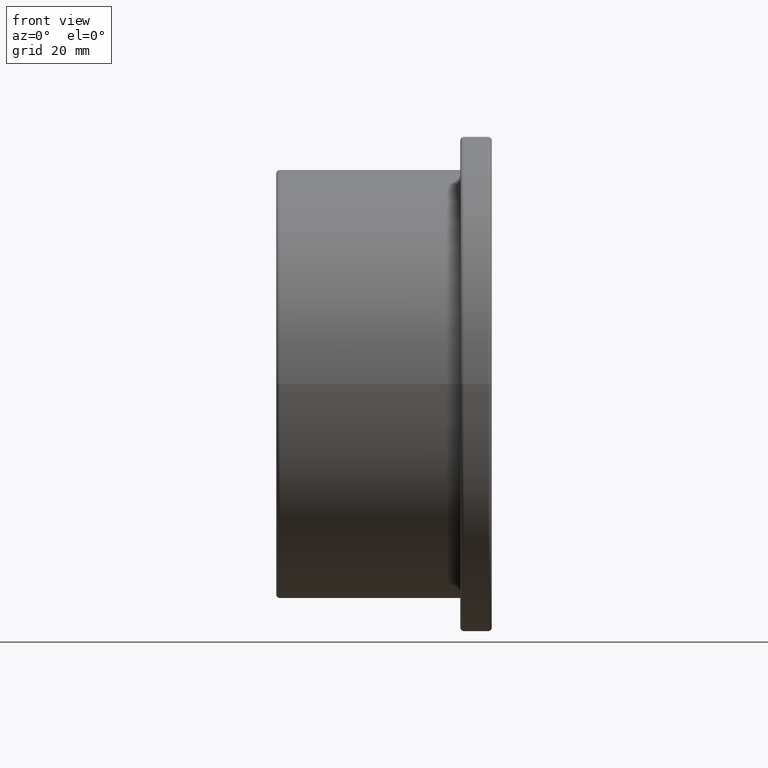
[diagram: clean part render]
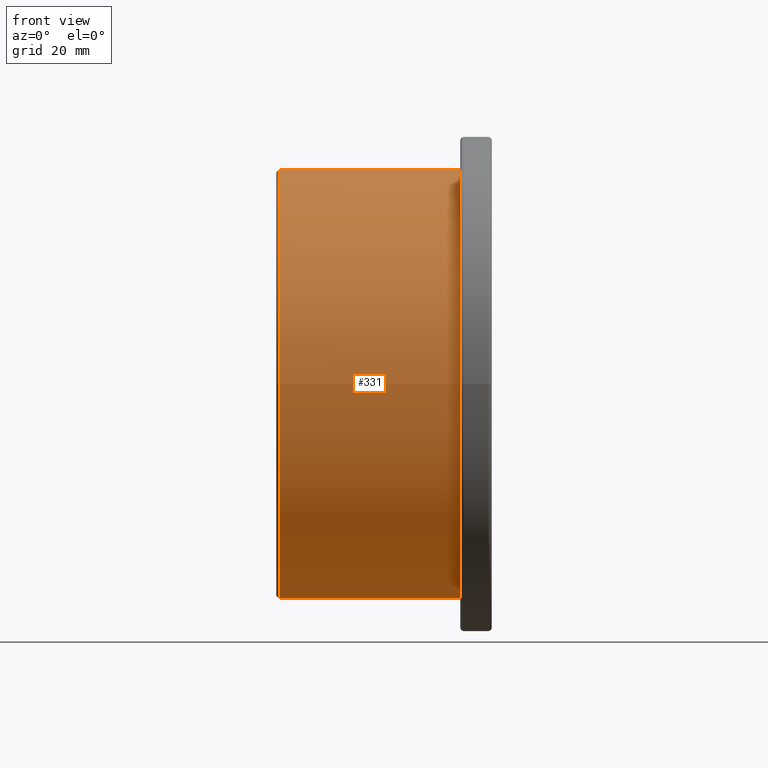
[diagram: same view with one face highlighted and labeled with its STEP entity id]
A machine part, front view. The second image highlights one B-rep face of the part: STEP entity #331.
In plain terms, the highlighted cylindrical surface (bore or boss wall) has radius 81.5 mm, axis along (-1, 0, 0).
Its self-contained STEP definition (entity closure, byte-faithful):
#23=CYLINDRICAL_SURFACE('',#379,81.5);
#64=FACE_BOUND('',#142,.T.);
#92=FACE_OUTER_BOUND('',#141,.T.);
#141=EDGE_LOOP('',(#291));
#142=EDGE_LOOP('',(#292));
#166=CIRCLE('',#376,81.5);
#167=CIRCLE('',#378,81.5);
#194=VERTEX_POINT('',#2209);
#195=VERTEX_POINT('',#2212);
#227=EDGE_CURVE('',#194,#194,#166,.T.);
#228=EDGE_CURVE('',#195,#195,#167,.T.);
#291=ORIENTED_EDGE('',*,*,#227,.T.);
#292=ORIENTED_EDGE('',*,*,#228,.F.);
#331=ADVANCED_FACE('',(#92,#64),#23,.T.);
#376=AXIS2_PLACEMENT_3D('',#2210,#465,#466);
#378=AXIS2_PLACEMENT_3D('',#2213,#469,#470);
#379=AXIS2_PLACEMENT_3D('',#2214,#471,#472);
#465=DIRECTION('center_axis',(-1.,0.,0.));
#466=DIRECTION('ref_axis',(0.,0.,1.));
#469=DIRECTION('center_axis',(-1.,0.,0.));
#470=DIRECTION('ref_axis',(0.,1.,6.12323399573677E-17));
#471=DIRECTION('center_axis',(-1.,0.,0.));
#472=DIRECTION('ref_axis',(0.,-1.,0.));
#2209=CARTESIAN_POINT('',(70.,-81.5,0.));
#2210=CARTESIAN_POINT('Origin',(70.,0.,0.));
#2212=CARTESIAN_POINT('',(1.4,-81.5,4.99043570652547E-15));
#2213=CARTESIAN_POINT('Origin',(1.4,0.,0.));
#2214=CARTESIAN_POINT('Origin',(35.,0.,0.));